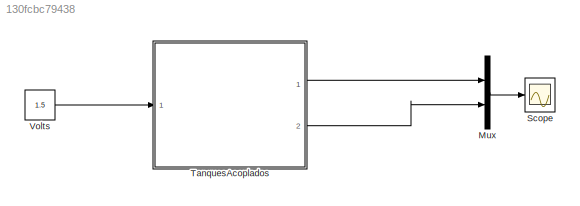
MODEL slx_130fcbc79438
KIND model
CONFIG AbsTol = auto
CONFIG EnableMultiTasking = off
CONFIG FixedStep = auto
CONFIG MaxStep = auto
CONFIG MinStep = auto
CONFIG RelTol = 1e-3
CONFIG SampleTimeConstraint = Unconstrained
CONFIG Solver = VariableStepAuto
CONFIG SolverName = VariableStepAuto
CONFIG StartTime = 0.0
CONFIG StopTime = inf
BLOCK [Mux] Mux
  DisplayOption = bar
  Inputs = 2
  Ports = [2, 1]
BLOCK [Scope] Scope
  Floating = off
  NumInputPorts = 1
  Ports = [1]
  ScopeSpecificationString = Simulink.scopes.TimeScopeBlockCfg('CurrentConfiguration', extmgr.ConfigurationSet(extmgr.Configuration('Core','General UI',true),extmgr.Configuration('Core','Source UI',true),extmgr.Configuration('Sources','WiredSimulink',true,'SampleTime','0.01'),extmgr.Configuration('Visuals','Time Domain',true,'SerializedDisplays',{struct('MinYLimReal','-4.25715','MaxYLimReal','35.81439','YLabelReal','','MinYLi...<+1662ch>
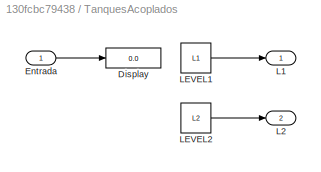
BLOCK [SubSystem] TanquesAcoplados
  Ports = [1, 2]
  RequestExecContextInheritance = off
  SystemSampleTime = 0.01
  TreatAsAtomicUnit = on
BLOCK [Display] TanquesAcoplados/Display
  Decimation = 1
  Ports = [1]
BLOCK [Inport] TanquesAcoplados/Entrada
  IconDisplay = Port number
BLOCK [Outport] TanquesAcoplados/L1
  IconDisplay = Port number
BLOCK [Outport] TanquesAcoplados/L2 
  IconDisplay = Port number
  Port = 2
BLOCK [Constant] TanquesAcoplados/LEVEL1
  SampleTime = 0.01
  Value = L1
BLOCK [Constant] TanquesAcoplados/LEVEL2
  SampleTime = 0.01
  Value = L2
BLOCK [Constant] Volts
  SampleTime = 0.01
  Value = 1.5
LINE Mux:1 -> Scope:1
LINE TanquesAcoplados/Entrada:1 -> TanquesAcoplados/Display:1
LINE TanquesAcoplados/LEVEL1:1 -> TanquesAcoplados/L1:1
LINE TanquesAcoplados/LEVEL2:1 -> TanquesAcoplados/L2 :1
LINE TanquesAcoplados:1 -> Mux:1
LINE TanquesAcoplados:2 -> Mux:2
LINE Volts:1 -> TanquesAcoplados:1
